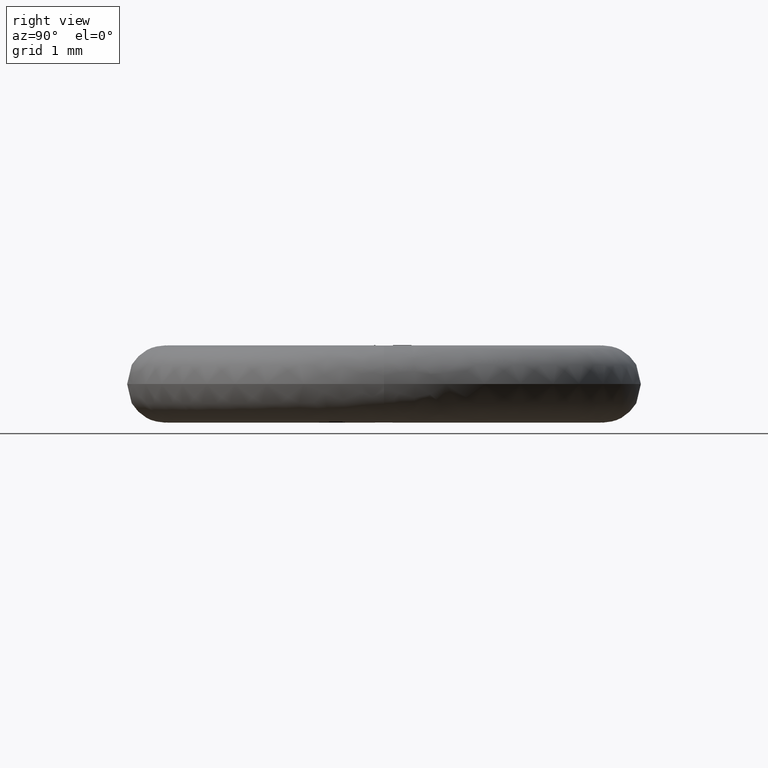
[diagram: clean part render]
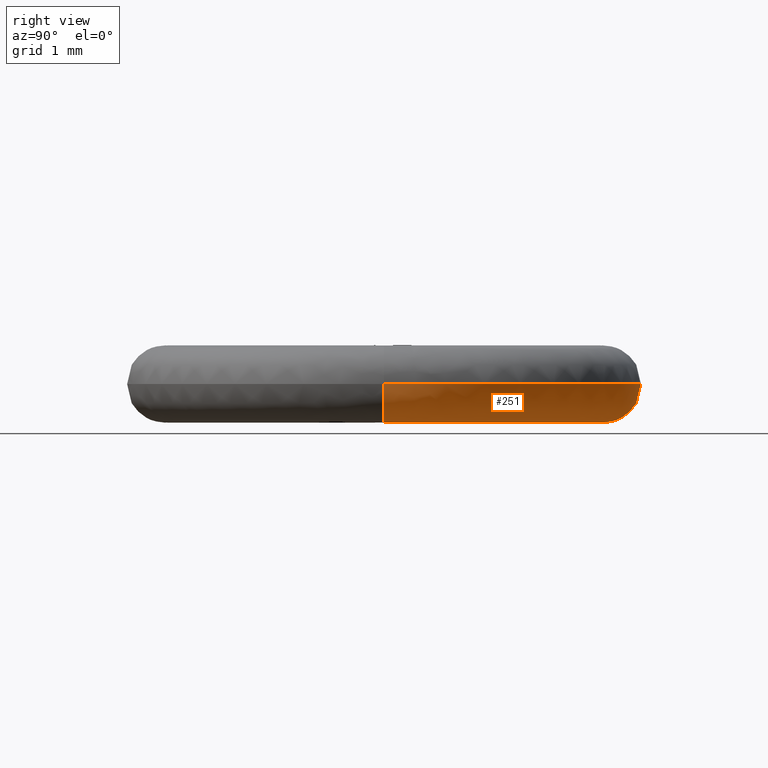
[diagram: same view with one face highlighted and labeled with its STEP entity id]
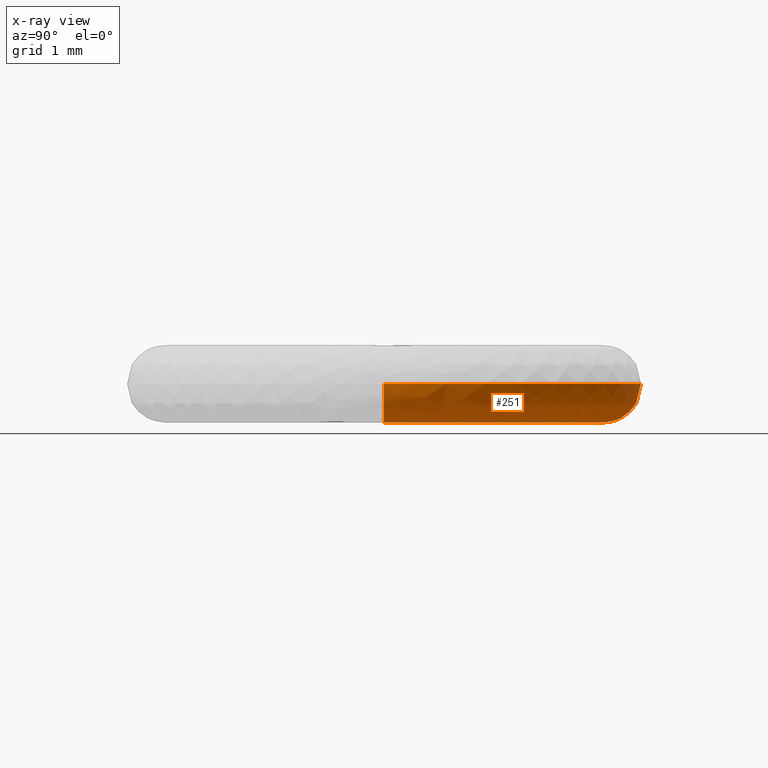
[diagram: x-ray of the same camera — body ghosted, the highlighted face saturated]
A machine part, right view. The second image highlights one B-rep face of the part: STEP entity #251.
The next image is the same camera in x-ray: the body ghosted, the highlighted face saturated — about 0% of this face is hidden behind the body in this view.
In plain terms, the highlighted face is a freeform B-spline surface patch.
Its self-contained STEP definition (entity closure, byte-faithful):
#38=CARTESIAN_POINT('',(4.0,0.0,16.399999999999999));
#39=VERTEX_POINT('',#38);
#40=CARTESIAN_POINT('',(-4.0,0.0,16.399999999999999));
#41=VERTEX_POINT('',#40);
#42=CARTESIAN_POINT('',(4.0,0.0,16.399999999999999));
#43=CARTESIAN_POINT('',(3.999961440489741,0.008181102791766,16.399999999999999));
#44=CARTESIAN_POINT('',(3.999967574564873,0.020450532218382,16.399999999999991));
#45=CARTESIAN_POINT('',(3.999739604024851,0.049081402965024,16.400000000000020));
#46=CARTESIAN_POINT('',(3.999374413978037,0.073620407451854,16.399999999999970));
#47=CARTESIAN_POINT('',(3.998777420192495,0.098156892664124,16.400000000000020));
#48=CARTESIAN_POINT('',(3.998383783816923,0.114514654640236,16.400000000000009));
#49=CARTESIAN_POINT('',(3.994110332273887,0.253532167455842,16.399999999999970));
#50=CARTESIAN_POINT('',(3.973154795636167,0.510680531255496,16.400000000000070));
#51=CARTESIAN_POINT('',(3.894083925516181,0.958293082501101,16.399999999999920));
#52=CARTESIAN_POINT('',(3.759352811009150,1.397593003374869,16.400000000000190));
#53=CARTESIAN_POINT('',(3.570884939821942,1.815791225785016,16.399999999999750));
#54=CARTESIAN_POINT('',(3.372014347450854,2.164353582960367,16.400000000000301));
#55=CARTESIAN_POINT('',(3.095997418079214,2.551219960457702,16.399999999999871));
#56=CARTESIAN_POINT('',(2.776631557714267,2.892907800792470,16.400000000000059));
#57=CARTESIAN_POINT('',(2.444533567672558,3.172324968443587,16.399999999999981));
#58=CARTESIAN_POINT('',(2.149953186303385,3.379793569105311,16.400000000000020));
#59=CARTESIAN_POINT('',(1.780648328435654,3.592014683009853,16.400000000000009));
#60=CARTESIAN_POINT('',(1.373669597998486,3.766468058451909,16.400000000000009));
#61=CARTESIAN_POINT('',(0.871087526299696,3.915570685735706,16.400000000000009));
#62=CARTESIAN_POINT('',(0.368702580764256,3.996407127036347,16.399999999999999));
#63=CARTESIAN_POINT('',(-0.139402530317862,4.005748185336730,16.400000000000009));
#64=CARTESIAN_POINT('',(-0.547220152750281,3.968105416517205,16.400000000000020));
#65=CARTESIAN_POINT('',(-0.925591056888228,3.897658889155479,16.399999999999970));
#66=CARTESIAN_POINT('',(-1.303600577278545,3.789297323208371,16.400000000000091));
#67=CARTESIAN_POINT('',(-1.645478292933573,3.651356998284719,16.399999999999959));
#68=CARTESIAN_POINT('',(-1.981302890566524,3.481023356246583,16.399999999999579));
#69=CARTESIAN_POINT('',(-2.342669214742069,3.255295677619120,16.400000000001299));
#70=CARTESIAN_POINT('',(-2.743090871598162,2.928730099104168,16.399999999999611));
#71=CARTESIAN_POINT('',(-3.139336709116809,2.502186195997212,16.400000000000190));
#72=CARTESIAN_POINT('',(-3.441136026738777,2.062287892690360,16.399999999999991));
#73=CARTESIAN_POINT('',(-3.689426017246314,1.572762870391445,16.399999999999871));
#74=CARTESIAN_POINT('',(-3.852479648786980,1.117053041660057,16.400000000000428));
#75=CARTESIAN_POINT('',(-3.971213632769302,0.572678780686917,16.399999999998901));
#76=CARTESIAN_POINT('',(-4.000015899636702,0.212711229629193,16.400000000001960));
#77=CARTESIAN_POINT('',(-4.0,0.0,16.399999999999999));
#78=B_SPLINE_CURVE_WITH_KNOTS('',3,(#42,#43,#44,#45,#46,#47,#48,#49,#50,#51,#52,#53,#54,#55,#56,#57,#58,#59,#60,#61,#62,#63,#64,#65,#66,#67,#68,#69,#70,#71,#72,#73,#74,#75,#76,#77),.UNSPECIFIED.,.F.,.U.,(4,1,1,1,1,1,1,1,1,1,1,1,1,1,1,1,1,1,1,1,1,1,1,1,1,1,1,1,1,1,1,1,1,4),(-0.000000209137596,0.024543491509574,0.036807681926286,0.085895327478180,0.098167208588050,0.110439089697936,0.134982919323070,0.515415245818492,0.883568931240912,1.497166940416763,1.889864152655729,2.258022912732876,2.699809435516153,3.313404284423827,3.657016211777661,4.000630372694650,4.393330845419417,4.933294055388171,5.325992935525208,5.964132481822455,6.454995797628889,6.847696719384165,7.191309076864951,7.608552269379263,8.025798469231166,8.295778967478007,8.737567311746116,9.302073808955822,9.842037269092650,10.480175369783471,10.897420264296221,11.486469650953531,11.928258623753980,12.566390195790500),.UNSPECIFIED.);
#79=EDGE_CURVE('',#39,#41,#78,.T.);
#81=CARTESIAN_POINT('',(-2.800000000000000,0.0,16.399999999999999));
#82=VERTEX_POINT('',#81);
#108=CARTESIAN_POINT('',(2.800000000000000,0.0,16.399999999999999));
#109=VERTEX_POINT('',#108);
#110=CARTESIAN_POINT('',(2.800000000000000,0.0,16.399999999999999));
#111=CARTESIAN_POINT('',(2.800004812009069,0.125989308582607,16.400000000000041));
#112=CARTESIAN_POINT('',(2.782579121566970,0.383696299128810,16.399999999999931));
#113=CARTESIAN_POINT('',(2.705241802195382,0.754633241336199,16.400000000000080));
#114=CARTESIAN_POINT('',(2.576820895603008,1.117052501365740,16.399999999999899));
#115=CARTESIAN_POINT('',(2.416488145136829,1.428404963207836,16.400000000000020));
#116=CARTESIAN_POINT('',(2.245305949130950,1.679552040897550,16.400000000000009));
#117=CARTESIAN_POINT('',(2.048234778051256,1.918197845318276,16.399999999999832));
#118=CARTESIAN_POINT('',(1.808430740334151,2.149331834045954,16.400000000000311));
#119=CARTESIAN_POINT('',(1.483582043366364,2.385653506310190,16.399999999999832));
#120=CARTESIAN_POINT('',(1.153786354958993,2.560635553671300,16.400000000000290));
#121=CARTESIAN_POINT('',(0.825404503079591,2.681544423207676,16.399999999999949));
#122=CARTESIAN_POINT('',(0.496947567025119,2.762751778803920,16.400000000000059));
#123=CARTESIAN_POINT('',(0.166344823841260,2.802498892100321,16.399999999999849));
#124=CARTESIAN_POINT('',(-0.189253707292652,2.800313946405548,16.399999999999810));
#125=CARTESIAN_POINT('',(-0.485307763489216,2.762877886378525,16.400000000000109));
#126=CARTESIAN_POINT('',(-0.792228330165327,2.690981760751203,16.399999999999959));
#127=CARTESIAN_POINT('',(-1.068693632494266,2.594924385079142,16.400000000000031));
#128=CARTESIAN_POINT('',(-1.347403063821782,2.459948629402672,16.399999999999999));
#129=CARTESIAN_POINT('',(-1.601240313112609,2.303539145714728,16.399999999999999));
#130=CARTESIAN_POINT('',(-1.859636409334965,2.103161144502490,16.399999999999999));
#131=CARTESIAN_POINT('',(-2.139696958486721,1.823113000589331,16.400000000000009));
#132=CARTESIAN_POINT('',(-2.380793398265504,1.493832865075246,16.399999999999999));
#133=CARTESIAN_POINT('',(-2.561561659436937,1.147988773044523,16.399999999999999));
#134=CARTESIAN_POINT('',(-2.696590786933832,0.788134522616054,16.400000000000372));
#135=CARTESIAN_POINT('',(-2.781038356102332,0.406606267933009,16.399999999998780));
#136=CARTESIAN_POINT('',(-2.800002292685097,0.125989228224001,16.400000000001079));
#137=CARTESIAN_POINT('',(-2.800000000000000,0.0,16.399999999999999));
#138=B_SPLINE_CURVE_WITH_KNOTS('',3,(#110,#111,#112,#113,#114,#115,#116,#117,#118,#119,#120,#121,#122,#123,#124,#125,#126,#127,#128,#129,#130,#131,#132,#133,#134,#135,#136,#137),.UNSPECIFIED.,.F.,.U.,(4,1,1,1,1,1,1,1,1,1,1,1,1,1,1,1,1,1,1,1,1,1,1,1,1,4),(4.500448E-009,0.377968096740929,0.773124412660360,1.133917160117234,1.529074027341316,1.821143805324539,2.044492759038594,2.456828710794857,2.817622875045096,3.247136556739816,3.573568763294388,3.865641197372780,4.260797836688766,4.570040062784586,4.930830581168669,5.154179668613714,5.514974132374521,5.807046629103290,6.081936028197761,6.408367821239052,6.786341860093609,7.267400934269064,7.628192636042226,7.954625146812234,8.418504063668173,8.796473229144109),.UNSPECIFIED.);
#139=EDGE_CURVE('',#109,#82,#138,.T.);
#168=CARTESIAN_POINT('',(-3.953788438532989,-0.564796485706337,16.485164069328288));
#169=CARTESIAN_POINT('',(-4.604999295663133,3.993925147889400,16.485164069328295));
#170=CARTESIAN_POINT('',(0.0,3.993925147889400,16.485164069328277));
#171=CARTESIAN_POINT('',(4.604999348738456,3.993925147889401,16.485164069328288));
#172=CARTESIAN_POINT('',(3.953788432088797,-0.564796530818122,16.485164069328281));
#173=CARTESIAN_POINT('',(-4.050432981348592,-0.578602105049288,15.804333355119979));
#174=CARTESIAN_POINT('',(-4.717561730025619,4.091550773528772,15.804333355119979));
#175=CARTESIAN_POINT('',(0.0,4.091550773528773,15.804333355119985));
#176=CARTESIAN_POINT('',(4.717561784398291,4.091550773528772,15.804333355119979));
#177=CARTESIAN_POINT('',(4.050432974746877,-0.578602151263764,15.804333355119983));
#178=CARTESIAN_POINT('',(-3.369563906650869,-0.481340335333030,15.800011843486320));
#179=CARTESIAN_POINT('',(-3.924549747172747,3.403769886379333,15.800011843486313));
#180=CARTESIAN_POINT('',(0.0,3.403769886379334,15.800011843486320));
#181=CARTESIAN_POINT('',(3.924549792405488,3.403769886379334,15.800011843486324));
#182=CARTESIAN_POINT('',(3.369563901158891,-0.481340373778952,15.800011843486324));
#183=CARTESIAN_POINT('',(-2.680489760488602,-0.382906475708526,15.795638253834872));
#184=CARTESIAN_POINT('',(-3.121981272134589,2.707700634343421,15.795638253834863));
#185=CARTESIAN_POINT('',(0.0,2.707700634343421,15.795638253834861));
#186=CARTESIAN_POINT('',(3.121981308117259,2.707700634343421,15.795638253834865));
#187=CARTESIAN_POINT('',(2.680489756119730,-0.382906506292276,15.795638253834866));
#188=CARTESIAN_POINT('',(-2.777815806309296,-0.396809447377799,16.484743383767832));
#189=CARTESIAN_POINT('',(-3.235337456822173,2.806014681235657,16.484743383767849));
#190=CARTESIAN_POINT('',(0.0,2.806014681235657,16.484743383767846));
#191=CARTESIAN_POINT('',(3.235337494111338,2.806014681235657,16.484743383767842));
#192=CARTESIAN_POINT('',(2.777815801781796,-0.396809479072016,16.484743383767842));
#200=(BOUNDED_SURFACE()B_SPLINE_SURFACE(2,2,((#168,#173,#178,#183,#188),(#169,#174,#179,#184,#189),(#170,#175,#180,#185,#190),(#171,#176,#181,#186,#191),(#172,#177,#182,#187,#192)),.UNSPECIFIED.,.F.,.F.,.U.)B_SPLINE_SURFACE_WITH_KNOTS((3,2,3),(3,2,3),(0.0,7.291438758942369,14.582877572756360),(0.0,1.091252790812271,2.191062567604255),.UNSPECIFIED.)GEOMETRIC_REPRESENTATION_ITEM()RATIONAL_B_SPLINE_SURFACE(((0.981153888787269,0.648897167007275,0.993091000097863,0.646198194020578,0.986406220279565),(0.645088854033311,0.426636773939286,0.652937263486529,0.424862253743267,0.648542155846706),(0.987979841414918,0.653411587602073,1.0,0.650693837681440,0.993268713725490),(0.645088851452890,0.426636772232695,0.652937260874713,0.424862252043775,0.648542153252471),(0.981153893845374,0.648897170352509,0.993091005217507,0.646198197351899,0.986406225364747)))REPRESENTATION_ITEM('')SURFACE());
#201=ORIENTED_EDGE('',*,*,#139,.T.);
#202=CARTESIAN_POINT('',(-4.0,0.0,16.399999999999999));
#203=CARTESIAN_POINT('',(-4.000002249409790,0.0,16.363186614711640));
#204=CARTESIAN_POINT('',(-3.992302979636138,0.0,16.279736989762259));
#205=CARTESIAN_POINT('',(-3.955715417059697,0.0,16.161725387586330));
#206=CARTESIAN_POINT('',(-3.896143020738874,0.0,16.056580730816808));
#207=CARTESIAN_POINT('',(-3.816844495838745,0.0,15.962326755071320));
#208=CARTESIAN_POINT('',(-3.721321260831053,0.0,15.887777025697259));
#209=CARTESIAN_POINT('',(-3.616896279848947,0.0,15.837614282601990));
#210=CARTESIAN_POINT('',(-3.529441510034644,0.0,15.812255073491640));
#211=CARTESIAN_POINT('',(-3.446742728575046,0.0,15.799989068207561));
#212=CARTESIAN_POINT('',(-3.350771415261744,0.0,15.798805904870930));
#213=CARTESIAN_POINT('',(-3.229068931364115,0.0,15.819141406775950));
#214=CARTESIAN_POINT('',(-3.110481246967989,0.0,15.869120447026869));
#215=CARTESIAN_POINT('',(-3.015824800835956,0.0,15.935799834070410));
#216=CARTESIAN_POINT('',(-2.945367616918193,0.0,16.004548974694352));
#217=CARTESIAN_POINT('',(-2.882260892184698,0.0,16.089628023437260));
#218=CARTESIAN_POINT('',(-2.835235628034671,0.0,16.187499185047962));
#219=CARTESIAN_POINT('',(-2.806346212667720,0.0,16.294465411695811));
#220=CARTESIAN_POINT('',(-2.799995779917154,0.0,16.363185821076080));
#221=CARTESIAN_POINT('',(-2.800000000000000,0.0,16.399999999999999));
#222=B_SPLINE_CURVE_WITH_KNOTS('',3,(#202,#203,#204,#205,#206,#207,#208,#209,#210,#211,#212,#213,#214,#215,#216,#217,#218,#219,#220,#221),.UNSPECIFIED.,.F.,.U.,(4,1,1,1,1,1,1,1,1,1,1,1,1,1,1,1,1,4),(0.000000018780131,0.110441465082837,0.250347001739653,0.368157757168497,0.471242095958040,0.618507664574304,0.728954044912137,0.817314844632539,0.890942495057172,0.979295057280498,1.104472979424393,1.259099157792597,1.362182668019704,1.450542089480547,1.553626133913531,1.678799555810924,1.774525153378640,1.884967419458822),.UNSPECIFIED.);
#223=EDGE_CURVE('',#41,#82,#222,.T.);
#224=ORIENTED_EDGE('',*,*,#223,.F.);
#225=ORIENTED_EDGE('',*,*,#79,.F.);
#226=CARTESIAN_POINT('',(2.800000000000000,0.0,16.399999999999999));
#227=CARTESIAN_POINT('',(2.799992309614939,0.0,16.353368629078108));
#228=CARTESIAN_POINT('',(2.811495666202324,0.0,16.255195494228289));
#229=CARTESIAN_POINT('',(2.855313927737275,0.0,16.139476737843140));
#230=CARTESIAN_POINT('',(2.915955300363661,0.0,16.041085802324002));
#231=CARTESIAN_POINT('',(2.986827392033808,0.0,15.958911383233451));
#232=CARTESIAN_POINT('',(3.083125392997633,0.0,15.885645301462869));
#233=CARTESIAN_POINT('',(3.183103430334856,0.0,15.837614405878011));
#234=CARTESIAN_POINT('',(3.280014249449847,0.0,15.809511440221369));
#235=CARTESIAN_POINT('',(3.377809182116460,0.0,15.797448197503380));
#236=CARTESIAN_POINT('',(3.473765350254842,0.0,15.802165426145169));
#237=CARTESIAN_POINT('',(3.574973163509643,0.0,15.822938899742150));
#238=CARTESIAN_POINT('',(3.666849238753304,0.0,15.859027871747189));
#239=CARTESIAN_POINT('',(3.752751109825342,0.0,15.911965303479271));
#240=CARTESIAN_POINT('',(3.828076315978014,0.0,15.975343493187710));
#241=CARTESIAN_POINT('',(3.905891253905931,0.0,16.067803342769331));
#242=CARTESIAN_POINT('',(3.962204334531045,0.0,16.177987077688229));
#243=CARTESIAN_POINT('',(3.993652453106882,0.0,16.294466183736489));
#244=CARTESIAN_POINT('',(4.000004119203632,0.0,16.363185840098819));
#245=CARTESIAN_POINT('',(4.0,0.0,16.399999999999999));
#246=B_SPLINE_CURVE_WITH_KNOTS('',3,(#226,#227,#228,#229,#230,#231,#232,#233,#234,#235,#236,#237,#238,#239,#240,#241,#242,#243,#244,#245),.UNSPECIFIED.,.F.,.U.,(4,1,1,1,1,1,1,1,1,1,1,1,1,1,1,1,1,4),(0.000000018786855,0.139894757163807,0.294523319293112,0.368157757173257,0.485968427485647,0.618507664578307,0.728954044915797,0.817314844635872,0.920400074145881,1.023474659098492,1.104472979426352,1.229646399558693,1.318004350431840,1.406362498345935,1.524173478825866,1.678799555811153,1.774525153378642,1.884967419458770),.UNSPECIFIED.);
#247=EDGE_CURVE('',#109,#39,#246,.T.);
#248=ORIENTED_EDGE('',*,*,#247,.F.);
#249=EDGE_LOOP('',(#201,#224,#225,#248));
#250=FACE_OUTER_BOUND('',#249,.T.);
#251=ADVANCED_FACE('',(#250),#200,.T.);